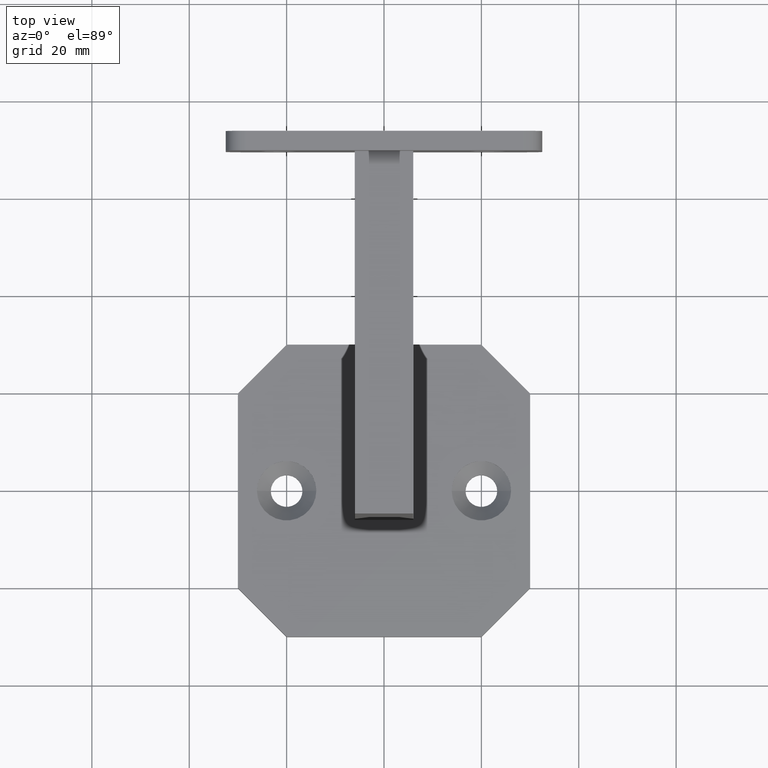
[diagram: clean part render]
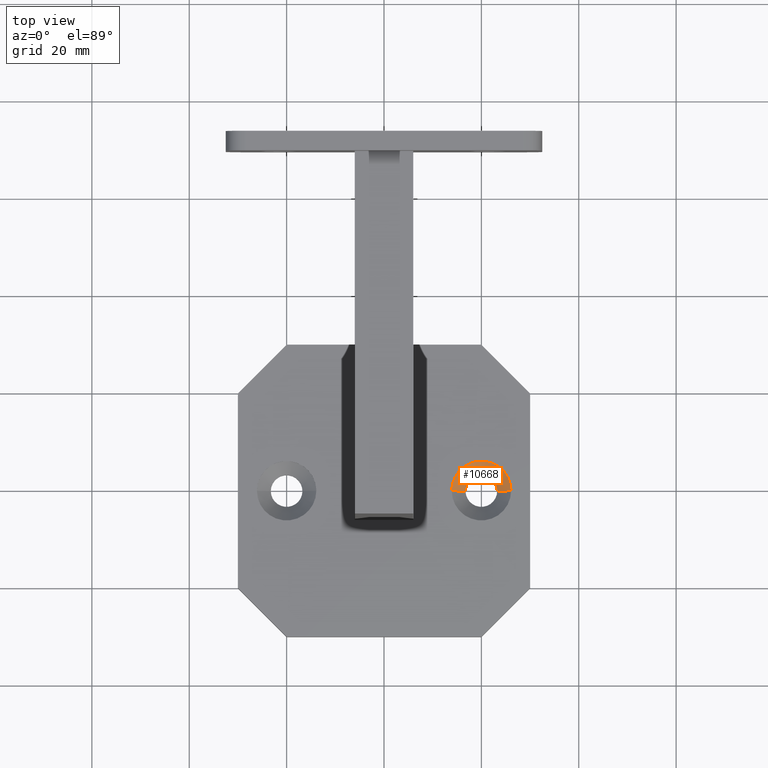
[diagram: same view with one face highlighted and labeled with its STEP entity id]
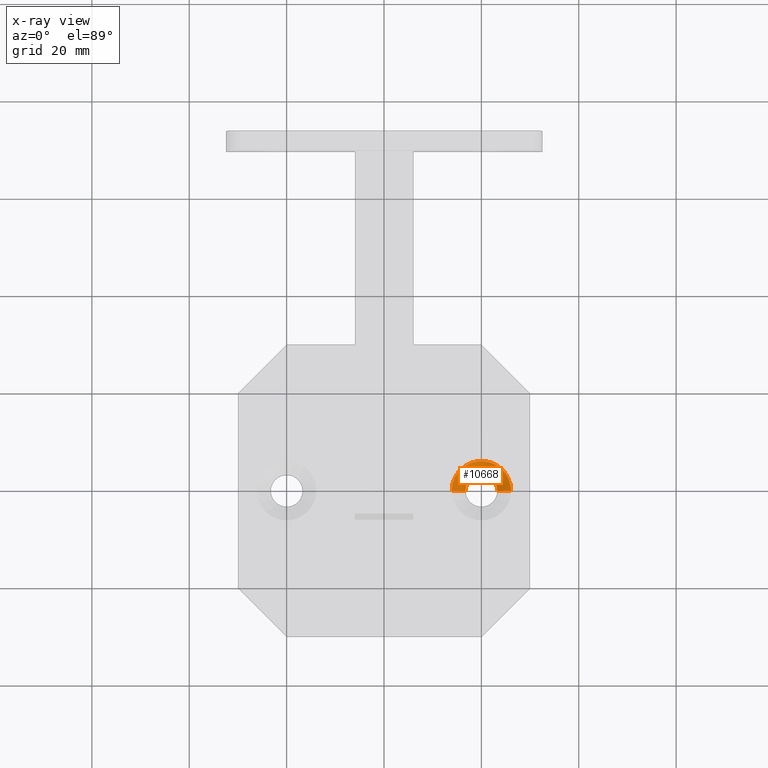
[diagram: x-ray of the same camera — body ghosted, the highlighted face saturated]
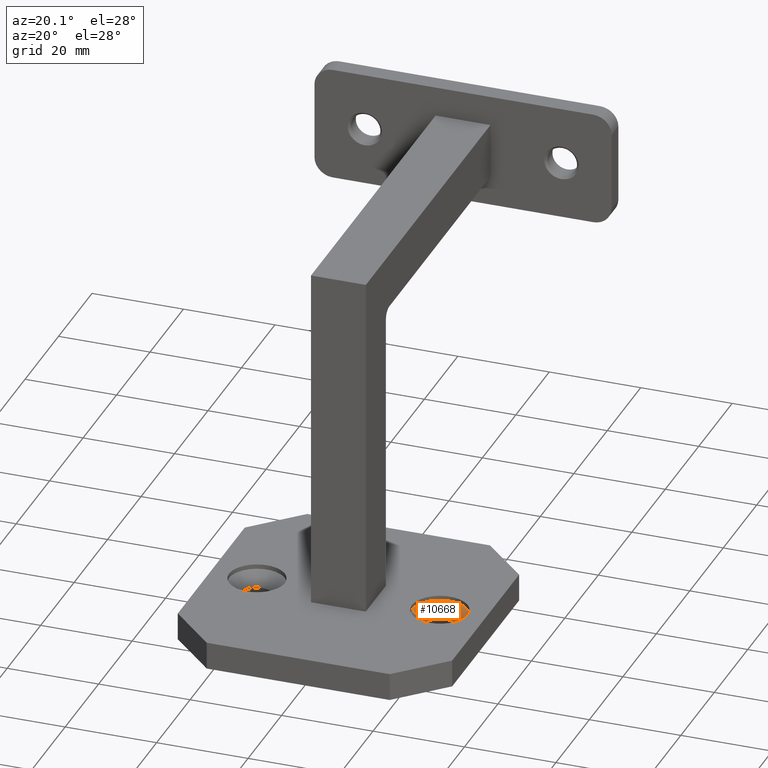
[diagram: same view with one face highlighted and labeled with its STEP entity id]
A machine part, top view. The second image highlights one B-rep face of the part: STEP entity #10668.
The next image is the same camera in x-ray: the body ghosted, the highlighted face saturated — about 0% of this face is hidden behind the body in this view.
A second angle (auxiliary view) of the same face is appended — the face is thin or edge-on in the first view.
In plain terms, the highlighted conical surface has half-angle 45 deg.
Its self-contained STEP definition (entity closure, byte-faithful):
#900 = CARTESIAN_POINT ( 'NONE',  ( 26.09999999999999787, 0.000000000000000000, 2.000000000000000888 ) ) ;
#977 = ORIENTED_EDGE ( 'NONE', *, *, #19175, .F. ) ;
#1161 = DIRECTION ( 'NONE',  ( -0.000000000000000000, -0.000000000000000000, 1.000000000000000000 ) ) ;
#3457 = AXIS2_PLACEMENT_3D ( 'NONE', #22001, #20061, #9390 ) ;
#3676 = CARTESIAN_POINT ( 'NONE',  ( 26.09999999999999787, 0.000000000000000000, 2.000000000000000888 ) ) ;
#3963 = VERTEX_POINT ( 'NONE', #17114 ) ;
#4306 = DIRECTION ( 'NONE',  ( -0.000000000000000000, -0.000000000000000000, 1.000000000000000000 ) ) ;
#5045 = FACE_OUTER_BOUND ( 'NONE', #18101, .T. ) ;
#5724 = VECTOR ( 'NONE', #10930, 999.9999999999998863 ) ;
#5970 = ORIENTED_EDGE ( 'NONE', *, *, #12871, .F. ) ;
#7069 = DIRECTION ( 'NONE',  ( 1.000000000000000000, 0.000000000000000000, 0.000000000000000000 ) ) ;
#7557 = CIRCLE ( 'NONE', #3457, 3.249999999999999556 ) ;
#7802 = VERTEX_POINT ( 'NONE', #22997 ) ;
#9390 = DIRECTION ( 'NONE',  ( 1.000000000000000000, 0.000000000000000000, 0.000000000000000000 ) ) ;
#9441 = CARTESIAN_POINT ( 'NONE',  ( 20.00000000000000000, 0.000000000000000000, 2.000000000000000888 ) ) ;
#9918 = ORIENTED_EDGE ( 'NONE', *, *, #21730, .T. ) ;
#10668 = ADVANCED_FACE ( 'NONE', ( #5045 ), #12294, .F. ) ;
#10930 = DIRECTION ( 'NONE',  ( 0.7071067811865477948, 0.000000000000000000, 0.7071067811865473507 ) ) ;
#12294 = CONICAL_SURFACE ( 'NONE', #18609, 6.099999999999997868, 0.7853981633974485010 ) ;
#12457 = CARTESIAN_POINT ( 'NONE',  ( 20.00000000000000000, 0.000000000000000000, 2.000000000000000888 ) ) ;
#12871 = EDGE_CURVE ( 'NONE', #7802, #3963, #15842, .T. ) ;
#12949 = CARTESIAN_POINT ( 'NONE',  ( 13.90000000000000213, 7.470345474798852320E-16, 2.000000000000000888 ) ) ;
#13198 = DIRECTION ( 'NONE',  ( 1.000000000000000000, 0.000000000000000000, 0.000000000000000000 ) ) ;
#14483 = CIRCLE ( 'NONE', #18692, 6.099999999999997868 ) ;
#14572 = DIRECTION ( 'NONE',  ( -0.7071067811865477948, 8.659560562354936556E-17, 0.7071067811865473507 ) ) ;
#14802 = ORIENTED_EDGE ( 'NONE', *, *, #16160, .T. ) ;
#15480 = LINE ( 'NONE', #3676, #5724 ) ;
#15842 = LINE ( 'NONE', #12949, #22246 ) ;
#16160 = EDGE_CURVE ( 'NONE', #18868, #17094, #15480, .T. ) ;
#17094 = VERTEX_POINT ( 'NONE', #900 ) ;
#17114 = CARTESIAN_POINT ( 'NONE',  ( 13.90000000000000213, 7.470345474798852320E-16, 2.000000000000000888 ) ) ;
#18101 = EDGE_LOOP ( 'NONE', ( #5970, #977, #14802, #9918 ) ) ;
#18609 = AXIS2_PLACEMENT_3D ( 'NONE', #9441, #4306, #13198 ) ;
#18692 = AXIS2_PLACEMENT_3D ( 'NONE', #12457, #1161, #7069 ) ;
#18868 = VERTEX_POINT ( 'NONE', #20463 ) ;
#19175 = EDGE_CURVE ( 'NONE', #18868, #7802, #7557, .T. ) ;
#20061 = DIRECTION ( 'NONE',  ( -0.000000000000000000, -0.000000000000000000, 1.000000000000000000 ) ) ;
#20463 = CARTESIAN_POINT ( 'NONE',  ( 23.25000000000000000, 0.000000000000000000, -0.8499999999999957589 ) ) ;
#21730 = EDGE_CURVE ( 'NONE', #17094, #3963, #14483, .T. ) ;
#22001 = CARTESIAN_POINT ( 'NONE',  ( 20.00000000000000000, 0.000000000000000000, -0.8499999999999957589 ) ) ;
#22246 = VECTOR ( 'NONE', #14572, 999.9999999999998863 ) ;
#22997 = CARTESIAN_POINT ( 'NONE',  ( 16.75000000000000000, 3.980102097228897245E-16, -0.8499999999999957589 ) ) ;